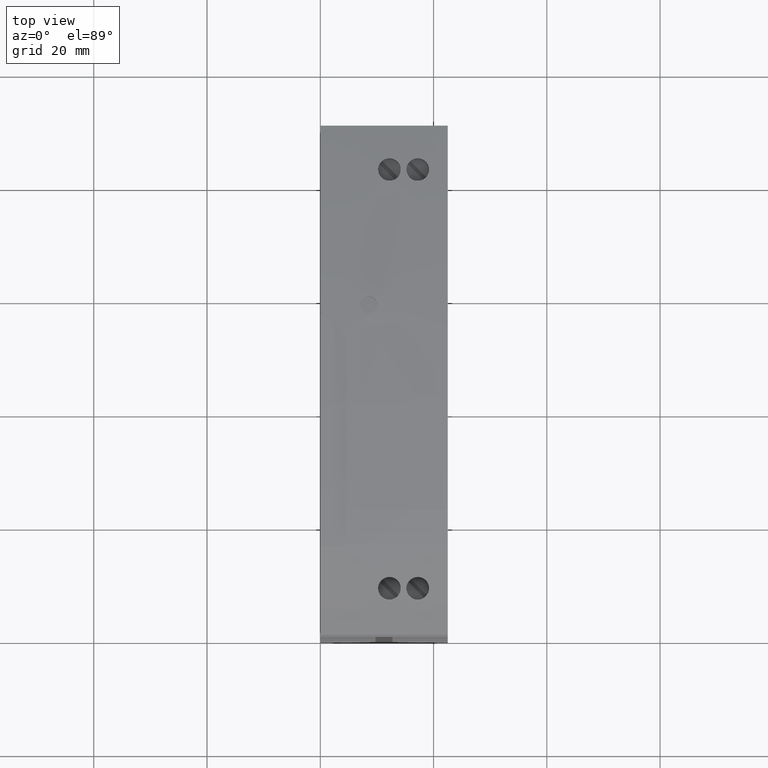
[diagram: clean part render]
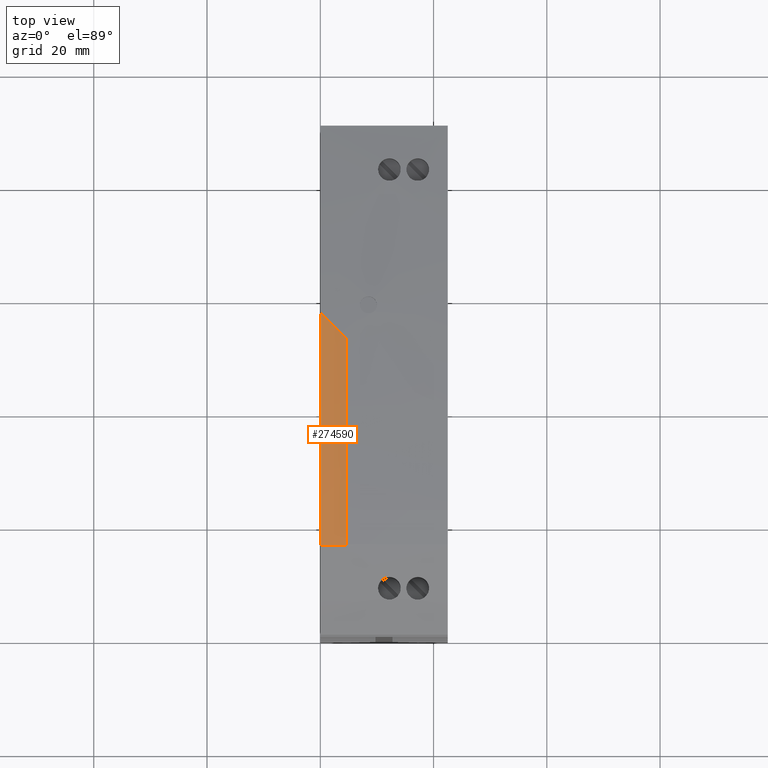
[diagram: same view with one face highlighted and labeled with its STEP entity id]
A machine part, top view. The second image highlights one B-rep face of the part: STEP entity #274590.
In plain terms, the highlighted cylindrical surface (partial cylindrical patch) has radius 349.75 mm, axis along (-1, 0, 0).
Its self-contained STEP definition (entity closure, byte-faithful):
#28140=CARTESIAN_POINT('',(11.9984763926468,86.7746920814856,-21.5));
#28150=VERTEX_POINT('',#28140);
#28180=CARTESIAN_POINT('',(-34.0174223565832,-259.934984106389,-21.5));
#28190=DIRECTION('',(0.,0.,-1.));
#28200=DIRECTION('',(0.149866758396655,0.988706202432087,0.));
#28210=AXIS2_PLACEMENT_3D('',#28180,#28190,#28200);
#28220=CIRCLE('',#28210,349.75);
#28230=CARTESIAN_POINT('',(-29.345667163846,89.783813220005,-21.5));
#28240=VERTEX_POINT('',#28230);
#28250=EDGE_CURVE('',#28240,#28150,#28220,.T.);
#153500=CARTESIAN_POINT('',(-29.345667163846,89.7838132200049,1.));
#153510=DIRECTION('',(0.,0.,1.));
#153520=VECTOR('',#153510,1.);
#153530=LINE('',#153500,#153520);
#153540=CARTESIAN_POINT('',(-29.345667163846,89.7838132200049,-16.9));
#153550=VERTEX_POINT('',#153540);
#153560=EDGE_CURVE('',#28240,#153550,#153530,.T.);
#274340=CARTESIAN_POINT('',(-34.0174223565832,-259.934984106389,-16.9));
#274350=DIRECTION('',(0.,0.,-1.));
#274360=DIRECTION('',(0.149866758396655,0.988706202432087,0.));
#274370=AXIS2_PLACEMENT_3D('',#274340,#274350,#274360);
#274380=CYLINDRICAL_SURFACE('',#274370,349.75);
#274390=CARTESIAN_POINT('',(-34.0174223565832,-259.934984106389,
24.51589874923));
#274400=DIRECTION('',(-0.707106781186548,0.,-0.707106781186548));
#274410=DIRECTION('',(0.707106781186548,-2.59033395531104E-17,
-0.707106781186548));
#274420=AXIS2_PLACEMENT_3D('',#274390,#274400,#274410);
#274430=ELLIPSE('',#274420,494.62119343999,349.75);
#274440=CARTESIAN_POINT('',(7.39847639264678,87.3542121419162,-16.9));
#274450=VERTEX_POINT('',#274440);
#274460=EDGE_CURVE('',#274450,#28150,#274430,.T.);
#274470=ORIENTED_EDGE('',*,*,#274460,.T.);
#274480=CARTESIAN_POINT('',(-34.0174223565832,-259.934984106389,-16.9));
#274490=DIRECTION('',(0.,0.,-1.));
#274500=DIRECTION('',(0.149866758396655,0.988706202432087,0.));
#274510=AXIS2_PLACEMENT_3D('',#274480,#274490,#274500);
#274520=CIRCLE('',#274510,349.75);
#274530=EDGE_CURVE('',#153550,#274450,#274520,.T.);
#274540=ORIENTED_EDGE('',*,*,#274530,.T.);
#274550=ORIENTED_EDGE('',*,*,#153560,.T.);
#274560=ORIENTED_EDGE('',*,*,#28250,.F.);
#274570=EDGE_LOOP('',(#274560,#274550,#274540,#274470));
#274580=FACE_OUTER_BOUND('',#274570,.T.);
#274590=ADVANCED_FACE('',(#274580),#274380,.T.);